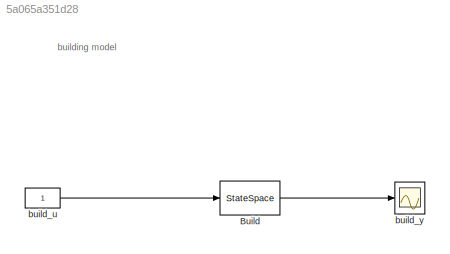
MODEL slx_5a065a351d28
KIND model
BLOCK [StateSpace] Build
  A = build_sys.sys.a
  B = build_sys.sys.b
  C = build_sys.sys.c
  D = build_sys.sys.d
  Ports = [1, 1]
  X0 = build_sys.x0_lb
BLOCK [Constant] build_u
BLOCK [Scope] build_y
  Floating = off
  NumInputPorts = 1
  Ports = [1]
  SaveName = ScopeData3
  ShowLegends = off
ANNOTATION (root): building model
LINE Build:1 -> build_y:1
LINE build_u:1 -> Build:1
